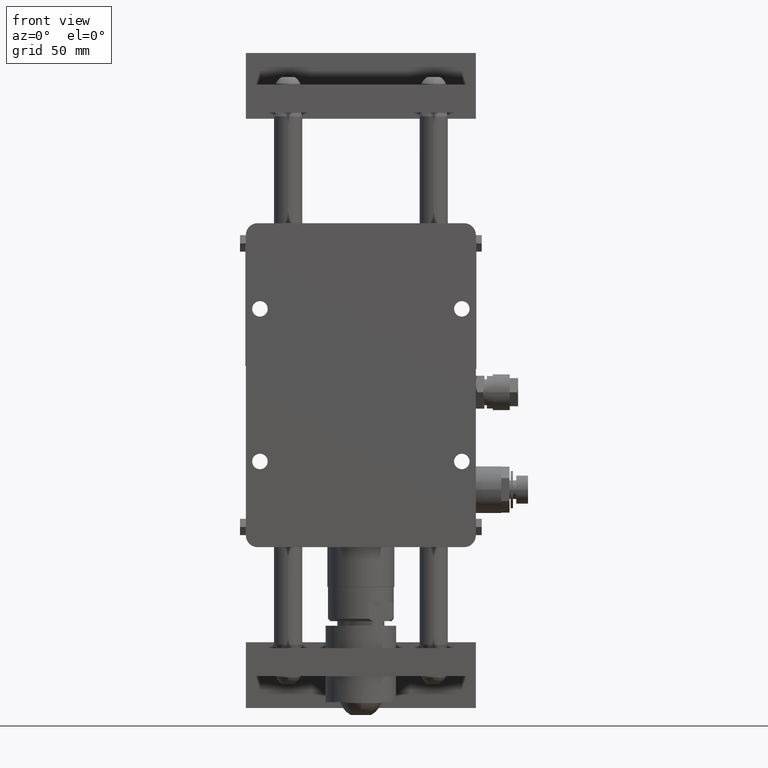
[diagram: clean part render]
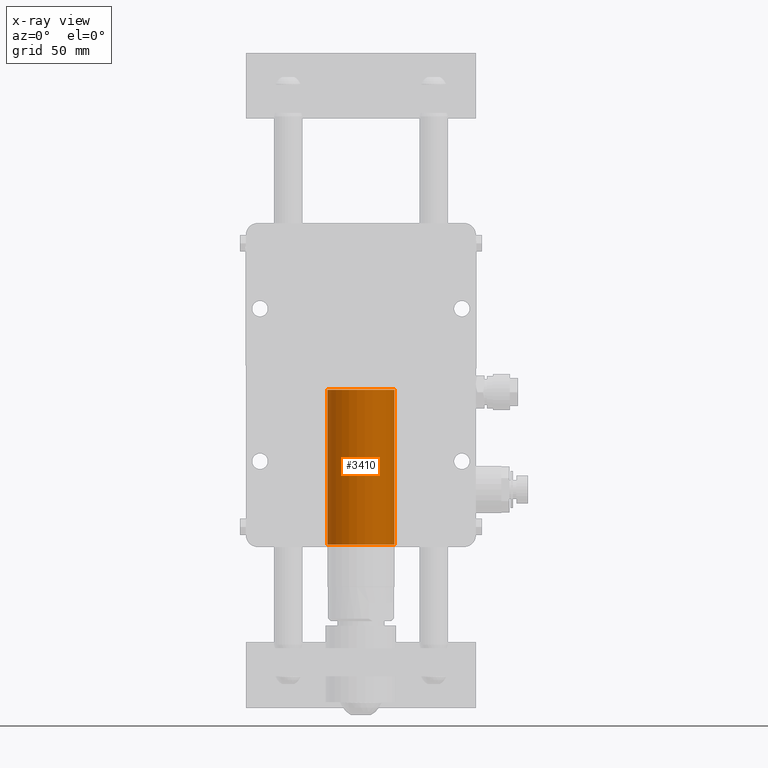
[diagram: x-ray — body ghosted, one internal face saturated and labeled with its STEP entity id]
A machine part, front view, then the same camera in x-ray: the body is ghosted and one INTERNAL B-rep face — a face not visible from any outside direction — is saturated and labeled: STEP entity #3410.
In plain terms, the highlighted cylindrical surface (edge-blend (fillet) strip) has radius 14.25 mm, axis along (0, 0, 1).
Its self-contained STEP definition (entity closure, byte-faithful):
#1536 = EDGE_CURVE ( 'NONE', #51463, #14458, #51511, .T. ) ;
#1782 = ORIENTED_EDGE ( 'NONE', *, *, #12088, .F. ) ;
#2387 = DIRECTION ( 'NONE',  ( 0.000000000000000000, 0.000000000000000000, 1.000000000000000000 ) ) ;
#2941 = LINE ( 'NONE', #44686, #26285 ) ;
#3410 = ADVANCED_FACE ( 'NONE', ( #39469 ), #13937, .F. ) ;
#3462 = CARTESIAN_POINT ( 'NONE',  ( 0.000000000000000000, 21.50000000000000000, 67.00000000000000000 ) ) ;
#5843 = EDGE_CURVE ( 'NONE', #14458, #29342, #2941, .T. ) ;
#8885 = CIRCLE ( 'NONE', #31704, 14.25000000000000000 ) ;
#10161 = CARTESIAN_POINT ( 'NONE',  ( 14.25000000000000000, 21.50000000000000000, 67.00000000000000000 ) ) ;
#10608 = DIRECTION ( 'NONE',  ( 0.000000000000000000, 0.000000000000000000, 1.000000000000000000 ) ) ;
#10614 = VERTEX_POINT ( 'NONE', #10161 ) ;
#12085 = EDGE_CURVE ( 'NONE', #29342, #10614, #8885, .T. ) ;
#12088 = EDGE_CURVE ( 'NONE', #51463, #10614, #20191, .T. ) ;
#13937 = CYLINDRICAL_SURFACE ( 'NONE', #51683, 14.25000000000000000 ) ;
#14458 = VERTEX_POINT ( 'NONE', #17065 ) ;
#15778 = ORIENTED_EDGE ( 'NONE', *, *, #12085, .T. ) ;
#17065 = CARTESIAN_POINT ( 'NONE',  ( -14.25000000000000000, 21.50000000000000000, 0.9999999999999770184 ) ) ;
#18246 = CARTESIAN_POINT ( 'NONE',  ( -14.25000000000000000, 21.50000000000000000, 67.00000000000000000 ) ) ;
#20191 = LINE ( 'NONE', #36388, #51867 ) ;
#22893 = DIRECTION ( 'NONE',  ( 0.000000000000000000, 0.000000000000000000, -1.000000000000000000 ) ) ;
#26002 = DIRECTION ( 'NONE',  ( 1.000000000000000000, 0.000000000000000000, 0.000000000000000000 ) ) ;
#26285 = VECTOR ( 'NONE', #53173, 1000.000000000000000 ) ;
#27265 = CARTESIAN_POINT ( 'NONE',  ( 0.000000000000000000, 21.50000000000000000, 0.9999999999999770184 ) ) ;
#29342 = VERTEX_POINT ( 'NONE', #18246 ) ;
#30402 = DIRECTION ( 'NONE',  ( 0.000000000000000000, 0.000000000000000000, 1.000000000000000000 ) ) ;
#31300 = EDGE_LOOP ( 'NONE', ( #41801, #41978, #15778, #1782 ) ) ;
#31399 = DIRECTION ( 'NONE',  ( -1.000000000000000000, 0.000000000000000000, 0.000000000000000000 ) ) ;
#31704 = AXIS2_PLACEMENT_3D ( 'NONE', #3462, #2387, #40791 ) ;
#32006 = CARTESIAN_POINT ( 'NONE',  ( 14.25000000000000000, 21.50000000000000000, 0.9999999999999770184 ) ) ;
#36388 = CARTESIAN_POINT ( 'NONE',  ( 14.25000000000000000, 21.50000000000000000, 0.000000000000000000 ) ) ;
#39469 = FACE_OUTER_BOUND ( 'NONE', #31300, .T. ) ;
#40791 = DIRECTION ( 'NONE',  ( 1.000000000000000000, 0.000000000000000000, 0.000000000000000000 ) ) ;
#41801 = ORIENTED_EDGE ( 'NONE', *, *, #1536, .T. ) ;
#41978 = ORIENTED_EDGE ( 'NONE', *, *, #5843, .T. ) ;
#44686 = CARTESIAN_POINT ( 'NONE',  ( -14.25000000000000000, 21.50000000000000000, 0.000000000000000000 ) ) ;
#51463 = VERTEX_POINT ( 'NONE', #32006 ) ;
#51511 = CIRCLE ( 'NONE', #54192, 14.25000000000000000 ) ;
#51683 = AXIS2_PLACEMENT_3D ( 'NONE', #52118, #30402, #26002 ) ;
#51867 = VECTOR ( 'NONE', #10608, 1000.000000000000000 ) ;
#52118 = CARTESIAN_POINT ( 'NONE',  ( 0.000000000000000000, 21.50000000000000000, 0.000000000000000000 ) ) ;
#53173 = DIRECTION ( 'NONE',  ( 0.000000000000000000, 0.000000000000000000, 1.000000000000000000 ) ) ;
#54192 = AXIS2_PLACEMENT_3D ( 'NONE', #27265, #22893, #31399 ) ;